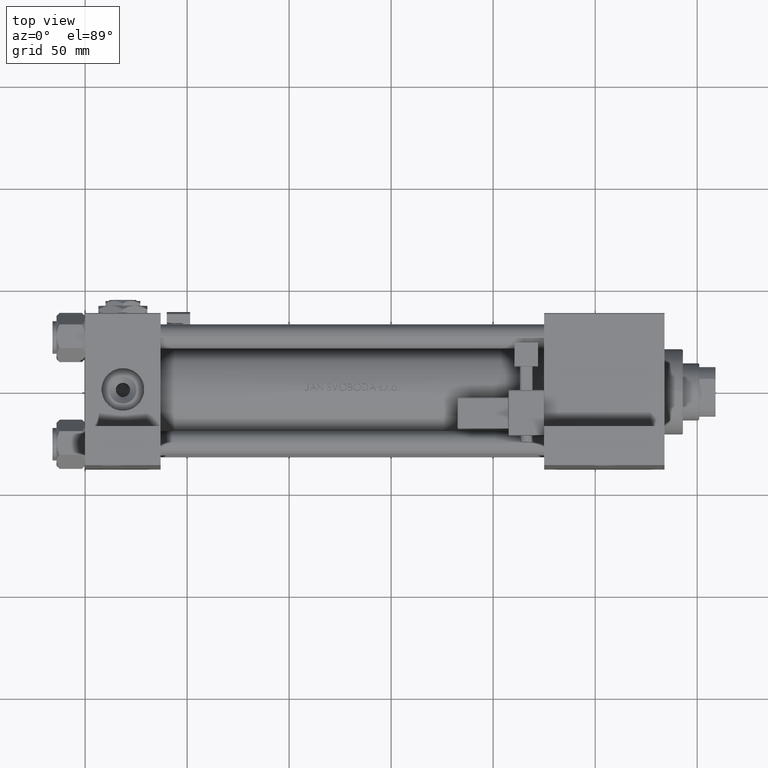
[diagram: clean part render]
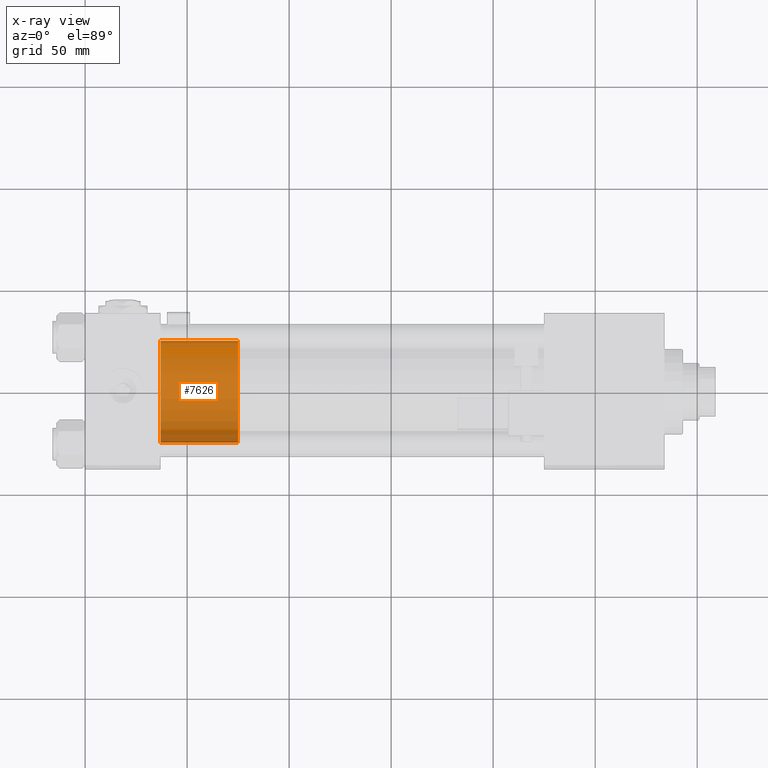
[diagram: x-ray — body ghosted, one internal face saturated and labeled with its STEP entity id]
A machine part, top view, then the same camera in x-ray: the body is ghosted and one INTERNAL B-rep face — a face not visible from any outside direction — is saturated and labeled: STEP entity #7626.
In plain terms, the highlighted cylindrical surface (partial cylindrical patch) has radius 25 mm, axis along (-1, 0, 0).
Its self-contained STEP definition (entity closure, byte-faithful):
#494 = LINE ( 'NONE', #1277, #6347 ) ;
#1277 = CARTESIAN_POINT ( 'NONE',  ( -25.00000000000000000, 0.000000000000000000, 38.00000000000000000 ) ) ;
#2159 = FACE_OUTER_BOUND ( 'NONE', #22488, .T. ) ;
#2797 = CARTESIAN_POINT ( 'NONE',  ( -25.00000000000000000, 0.000000000000000000, 38.00000000000000000 ) ) ;
#3741 = DIRECTION ( 'NONE',  ( 1.000000000000000000, 0.000000000000000000, 0.000000000000000000 ) ) ;
#4215 = EDGE_CURVE ( 'NONE', #21283, #10931, #35657, .T. ) ;
#6347 = VECTOR ( 'NONE', #13013, 1000.000000000000000 ) ;
#7367 = DIRECTION ( 'NONE',  ( -0.000000000000000000, -0.000000000000000000, -1.000000000000000000 ) ) ;
#7626 = ADVANCED_FACE ( 'NONE', ( #2159 ), #22239, .T. ) ;
#9635 = EDGE_CURVE ( 'NONE', #24078, #38642, #49297, .T. ) ;
#10778 = VECTOR ( 'NONE', #7367, 1000.000000000000000 ) ;
#10931 = VERTEX_POINT ( 'NONE', #26920 ) ;
#11615 = DIRECTION ( 'NONE',  ( 0.000000000000000000, 0.000000000000000000, 1.000000000000000000 ) ) ;
#13013 = DIRECTION ( 'NONE',  ( -0.000000000000000000, -0.000000000000000000, -1.000000000000000000 ) ) ;
#13385 = CARTESIAN_POINT ( 'NONE',  ( 0.000000000000000000, 0.000000000000000000, 38.00000000000000000 ) ) ;
#14964 = LINE ( 'NONE', #27962, #10778 ) ;
#19130 = ORIENTED_EDGE ( 'NONE', *, *, #4215, .T. ) ;
#20228 = CARTESIAN_POINT ( 'NONE',  ( 0.000000000000000000, 0.000000000000000000, 0.000000000000000000 ) ) ;
#21283 = VERTEX_POINT ( 'NONE', #47614 ) ;
#21697 = EDGE_CURVE ( 'NONE', #38642, #10931, #494, .T. ) ;
#22239 = CYLINDRICAL_SURFACE ( 'NONE', #34240, 25.00000000000000000 ) ;
#22488 = EDGE_LOOP ( 'NONE', ( #40957, #31424, #19130, #28692 ) ) ;
#23563 = CARTESIAN_POINT ( 'NONE',  ( 0.000000000000000000, 0.000000000000000000, 38.00000000000000000 ) ) ;
#24078 = VERTEX_POINT ( 'NONE', #25024 ) ;
#25024 = CARTESIAN_POINT ( 'NONE',  ( 25.00000000000000000, 3.061616997868383043E-15, 38.00000000000000000 ) ) ;
#26920 = CARTESIAN_POINT ( 'NONE',  ( -25.00000000000000000, 0.000000000000000000, 0.000000000000000000 ) ) ;
#27962 = CARTESIAN_POINT ( 'NONE',  ( 25.00000000000000000, 3.061616997868383043E-15, 38.00000000000000000 ) ) ;
#28692 = ORIENTED_EDGE ( 'NONE', *, *, #21697, .F. ) ;
#29539 = DIRECTION ( 'NONE',  ( -1.000000000000000000, 0.000000000000000000, 0.000000000000000000 ) ) ;
#31424 = ORIENTED_EDGE ( 'NONE', *, *, #38194, .T. ) ;
#33711 = DIRECTION ( 'NONE',  ( -0.000000000000000000, -0.000000000000000000, -1.000000000000000000 ) ) ;
#34240 = AXIS2_PLACEMENT_3D ( 'NONE', #13385, #33711, #29539 ) ;
#34311 = AXIS2_PLACEMENT_3D ( 'NONE', #23563, #39446, #3741 ) ;
#35657 = CIRCLE ( 'NONE', #42328, 25.00000000000000000 ) ;
#38194 = EDGE_CURVE ( 'NONE', #24078, #21283, #14964, .T. ) ;
#38642 = VERTEX_POINT ( 'NONE', #2797 ) ;
#39446 = DIRECTION ( 'NONE',  ( 0.000000000000000000, 0.000000000000000000, 1.000000000000000000 ) ) ;
#40957 = ORIENTED_EDGE ( 'NONE', *, *, #9635, .F. ) ;
#42328 = AXIS2_PLACEMENT_3D ( 'NONE', #20228, #11615, #51499 ) ;
#47614 = CARTESIAN_POINT ( 'NONE',  ( 25.00000000000000000, 3.061616997868383043E-15, 0.000000000000000000 ) ) ;
#49297 = CIRCLE ( 'NONE', #34311, 25.00000000000000000 ) ;
#51499 = DIRECTION ( 'NONE',  ( 1.000000000000000000, 0.000000000000000000, 0.000000000000000000 ) ) ;